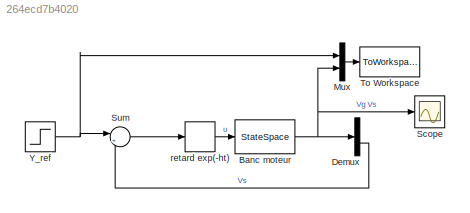
MODEL slx_264ecd7b4020
KIND model
CONFIG AbsTol = auto
CONFIG FixedStep = auto
CONFIG MaxStep = auto
CONFIG MinStep = auto
CONFIG RelTol = 1e-6
CONFIG SampleTimeConstraint = Unconstrained
CONFIG Solver = ode45
CONFIG SolverMode = Auto
CONFIG SolverName = ode45
CONFIG StartTime = 0.0
CONFIG StopTime = 10.0
BLOCK [StateSpace] Banc moteur
  A = m.ee.a
  B = m.ee.b
  C = m.ee.c
  D = m.ee.d
  Ports = [1, 1]
  X0 = 0
BLOCK [Demux] Demux
  DisplayOption = bar
  Outputs = 2
  Ports = [1, 2]
BLOCK [Mux] Mux
  DisplayOption = bar
  Inputs = 2
  Ports = [2, 1]
BLOCK [Scope] Scope
  Floating = off
  NumInputPorts = 1
  Ports = [1]
BLOCK [Sum] Sum
  IconShape = round
  InputSameDT = off
  Inputs = |+-
  OutDataTypeStr = Inherit: Inherit via internal rule
  Ports = [2, 1]
  SaturateOnIntegerOverflow = off
BLOCK [ToWorkspace] To Workspace
  FixptAsFi = on
  MaxDataPoints = inf
  Ports = [1]
  SampleTime = -1
  Save2DSignal = 3-D array (concatenate along third dimension)
  SaveFormat = Structure With Time
  VariableName = simout
BLOCK [Step] Y_ref
  SampleTime = 0
  Time = 0
BLOCK [TransportDelay] retard exp(-ht)
  DelayTime = h
  Ports = [1, 1]
NET Banc moteur:1 -> Demux:1, Mux:2, Scope:1
LINE Demux:2 -> Sum:2
LINE Mux:1 -> To Workspace:1
LINE Sum:1 -> retard exp(-ht):1
NET Y_ref:1 -> Mux:1, Sum:1
LINE retard exp(-ht):1 -> Banc moteur:1
note: NET lines group one-source signal fan-out (src -> all destinations, sorted); 1:1 wires keep LINE
